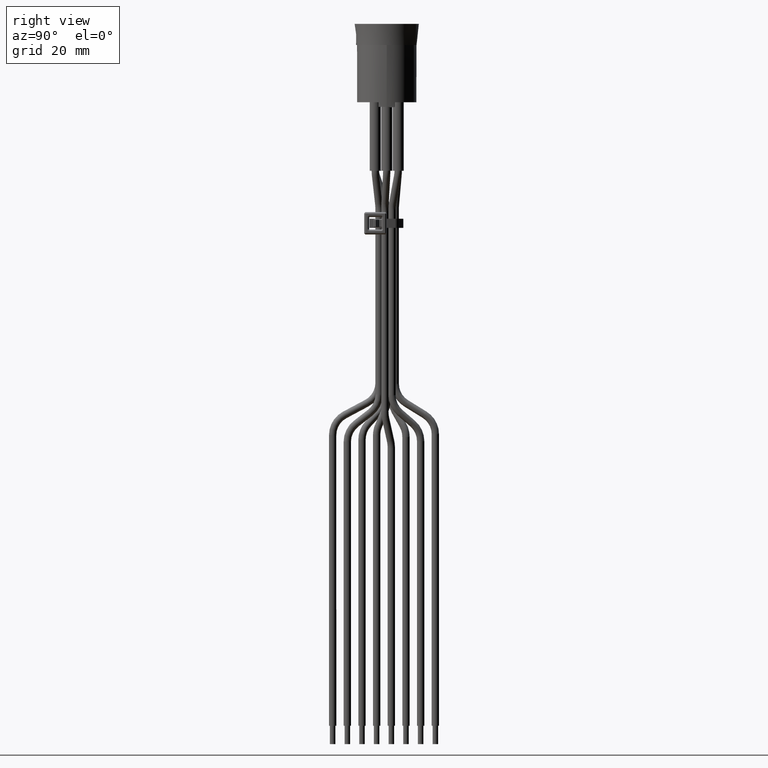
[diagram: clean part render]
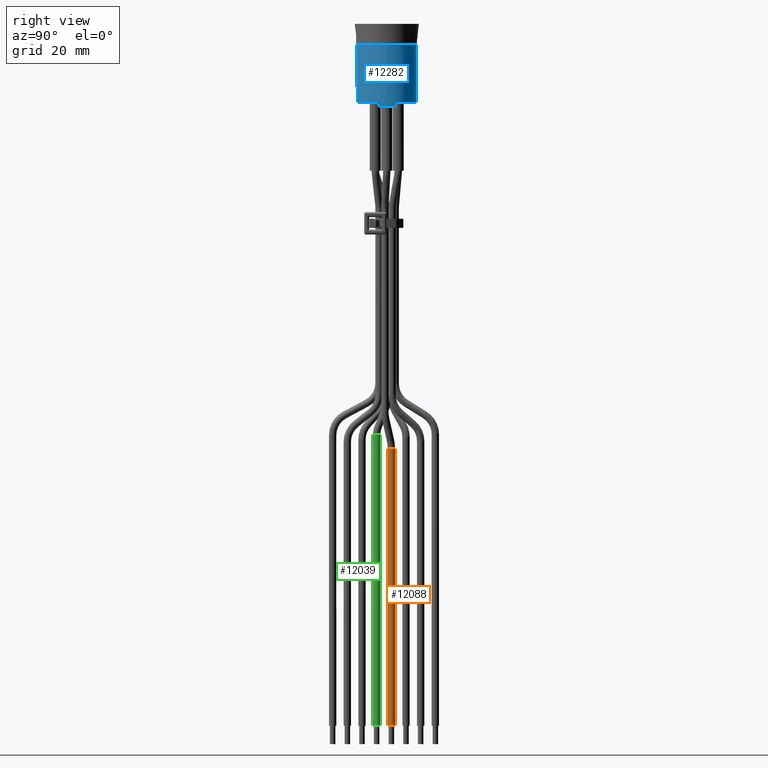
[diagram: same view with three faces highlighted in distinct colors, each labeled with its STEP entity id]
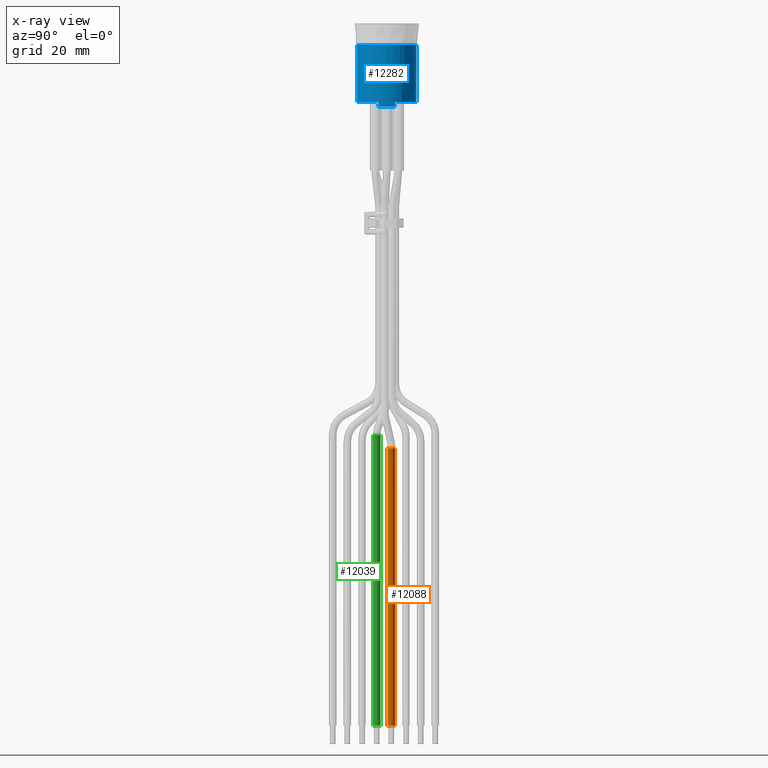
[diagram: x-ray of the same camera — body ghosted, the three highlighted faces saturated]
A machine part, right view with three faces highlighted in distinct colors.
The next image is the same camera in x-ray (body ghosted, the three faces saturated) — at least one of them is partly hidden behind the body in this view.
Their STEP definitions:

[orange] entity #12088 — the highlighted cylindrical surface (bore or boss wall) has radius 0.8 mm, axis along (-0, 0, -1).
#990=FACE_OUTER_BOUND('',#1674,.T.);
#1674=EDGE_LOOP('',(#8793,#8794,#8795,#8796,#8797));
#2397=CIRCLE('',#12904,0.8);
#2412=CIRCLE('',#12925,0.8);
#2413=CIRCLE('',#12926,0.8);
#2993=LINE('',#18616,#4143);
#4143=VECTOR('',#14583,0.8);
#5350=VERTEX_POINT('',#18576);
#5361=VERTEX_POINT('',#18610);
#5362=VERTEX_POINT('',#18611);
#6657=EDGE_CURVE('',#5350,#5350,#2397,.T.);
#6674=EDGE_CURVE('',#5361,#5362,#2412,.T.);
#6675=EDGE_CURVE('',#5362,#5361,#2413,.T.);
#6677=EDGE_CURVE('',#5350,#5361,#2993,.T.);
#8793=ORIENTED_EDGE('',*,*,#6657,.F.);
#8794=ORIENTED_EDGE('',*,*,#6677,.T.);
#8795=ORIENTED_EDGE('',*,*,#6674,.T.);
#8796=ORIENTED_EDGE('',*,*,#6675,.T.);
#8797=ORIENTED_EDGE('',*,*,#6677,.F.);
#11863=CYLINDRICAL_SURFACE('',#12928,0.8);
#12088=ADVANCED_FACE('',(#990),#11863,.T.);
#12904=AXIS2_PLACEMENT_3D('',#18577,#14531,#14532);
#12925=AXIS2_PLACEMENT_3D('',#18612,#14575,#14576);
#12926=AXIS2_PLACEMENT_3D('',#18613,#14577,#14578);
#12928=AXIS2_PLACEMENT_3D('',#18615,#14581,#14582);
#14531=DIRECTION('center_axis',(-1.91513471747839E-15,5.30176234430779E-15,
-1.));
#14532=DIRECTION('ref_axis',(-4.93166788936738E-15,1.,5.36507975118095E-15));
#14575=DIRECTION('center_axis',(-1.91513471747839E-15,5.30176234430779E-15,
-1.));
#14576=DIRECTION('ref_axis',(-4.93166788936738E-15,1.,5.36507975118095E-15));
#14577=DIRECTION('center_axis',(-1.91513471747839E-15,5.30176234430779E-15,
-1.));
#14578=DIRECTION('ref_axis',(-4.93166788936738E-15,1.,5.36507975118095E-15));
#14581=DIRECTION('center_axis',(-1.74860126378461E-15,4.9102626461505E-15,
-1.));
#14582=DIRECTION('ref_axis',(-4.93166788936739E-15,1.,4.9102626461505E-15));
#14583=DIRECTION('',(1.74860126378461E-15,-4.9102626461505E-15,1.));
#18576=CARTESIAN_POINT('',(-0.0214932559556519,0.200000000000643,-128.1));
#18577=CARTESIAN_POINT('Origin',(-0.0214932559556518,1.00000000000064,-128.1));
#18610=CARTESIAN_POINT('',(-0.0214932559555461,0.200000000000342,-67.5757188810226));
#18611=CARTESIAN_POINT('',(0.61184146450397,0.511239187474966,-67.5757188810226));
#18612=CARTESIAN_POINT('Origin',(-0.0214932559555459,1.00000000000034,-67.5757188810226));
#18613=CARTESIAN_POINT('Origin',(-0.0214932559555459,1.00000000000034,-67.5757188810226));
#18615=CARTESIAN_POINT('Origin',(-0.0214932559555459,1.00000000000034,-67.5757188810226));
#18616=CARTESIAN_POINT('',(-0.0214932559555421,0.200000000000342,-67.5757188810226));

[blue] entity #12282 — the highlighted cylindrical surface (bore or boss wall) has radius 6.5 mm, axis along (-0, -0, 1).
#1184=FACE_OUTER_BOUND('',#1886,.T.);
#1886=EDGE_LOOP('',(#9869,#9870,#9871,#9872,#9873,#9874,#9875,#9876,#9877,
#9878,#9879,#9880,#9881));
#2673=CIRCLE('',#13376,6.5);
#2674=CIRCLE('',#13377,6.5);
#2680=CIRCLE('',#13392,6.5);
#2681=CIRCLE('',#13393,6.5);
#2682=CIRCLE('',#13394,6.5);
#2683=CIRCLE('',#13395,6.5);
#2684=CIRCLE('',#13396,6.5);
#3217=LINE('',#21164,#4367);
#3223=LINE('',#21176,#4373);
#3229=LINE('',#21189,#4379);
#3235=LINE('',#21201,#4385);
#3240=LINE('',#21211,#4390);
#4367=VECTOR('',#15721,10.);
#4373=VECTOR('',#15729,10.);
#4379=VECTOR('',#15739,10.);
#4385=VECTOR('',#15747,10.);
#4390=VECTOR('',#15756,6.5);
#5697=VERTEX_POINT('',#21109);
#5698=VERTEX_POINT('',#21111);
#5713=VERTEX_POINT('',#21160);
#5715=VERTEX_POINT('',#21163);
#5718=VERTEX_POINT('',#21170);
#5720=VERTEX_POINT('',#21174);
#5723=VERTEX_POINT('',#21185);
#5725=VERTEX_POINT('',#21188);
#5728=VERTEX_POINT('',#21195);
#5730=VERTEX_POINT('',#21199);
#5733=VERTEX_POINT('',#21210);
#7203=EDGE_CURVE('',#5697,#5698,#2673,.T.);
#7204=EDGE_CURVE('',#5698,#5697,#2674,.T.);
#7221=EDGE_CURVE('',#5713,#5715,#3217,.T.);
#7227=EDGE_CURVE('',#5718,#5720,#3223,.T.);
#7233=EDGE_CURVE('',#5723,#5725,#3229,.T.);
#7239=EDGE_CURVE('',#5728,#5730,#3235,.T.);
#7244=EDGE_CURVE('',#5698,#5733,#3240,.T.);
#7245=EDGE_CURVE('',#5725,#5733,#2680,.T.);
#7246=EDGE_CURVE('',#5718,#5723,#2681,.T.);
#7247=EDGE_CURVE('',#5715,#5720,#2682,.T.);
#7248=EDGE_CURVE('',#5728,#5713,#2683,.T.);
#7249=EDGE_CURVE('',#5733,#5730,#2684,.T.);
#9869=ORIENTED_EDGE('',*,*,#7203,.F.);
#9870=ORIENTED_EDGE('',*,*,#7204,.F.);
#9871=ORIENTED_EDGE('',*,*,#7244,.T.);
#9872=ORIENTED_EDGE('',*,*,#7245,.F.);
#9873=ORIENTED_EDGE('',*,*,#7233,.F.);
#9874=ORIENTED_EDGE('',*,*,#7246,.F.);
#9875=ORIENTED_EDGE('',*,*,#7227,.T.);
#9876=ORIENTED_EDGE('',*,*,#7247,.F.);
#9877=ORIENTED_EDGE('',*,*,#7221,.F.);
#9878=ORIENTED_EDGE('',*,*,#7248,.F.);
#9879=ORIENTED_EDGE('',*,*,#7239,.T.);
#9880=ORIENTED_EDGE('',*,*,#7249,.F.);
#9881=ORIENTED_EDGE('',*,*,#7244,.F.);
#11926=CYLINDRICAL_SURFACE('',#13391,6.5);
#12282=ADVANCED_FACE('',(#1184),#11926,.T.);
#13376=AXIS2_PLACEMENT_3D('',#21112,#15695,#15696);
#13377=AXIS2_PLACEMENT_3D('',#21113,#15697,#15698);
#13391=AXIS2_PLACEMENT_3D('',#21209,#15754,#15755);
#13392=AXIS2_PLACEMENT_3D('',#21212,#15757,#15758);
#13393=AXIS2_PLACEMENT_3D('',#21213,#15759,#15760);
#13394=AXIS2_PLACEMENT_3D('',#21214,#15761,#15762);
#13395=AXIS2_PLACEMENT_3D('',#21215,#15763,#15764);
#13396=AXIS2_PLACEMENT_3D('',#21216,#15765,#15766);
#15695=DIRECTION('center_axis',(-1.33148491864264E-14,-1.02644414540674E-28,
1.));
#15696=DIRECTION('ref_axis',(-1.,-7.83572744318549E-15,-1.33148491864264E-14));
#15697=DIRECTION('center_axis',(-1.33148491864264E-14,-1.02644414540674E-28,
1.));
#15698=DIRECTION('ref_axis',(-1.,-7.83572744318549E-15,-1.33148491864264E-14));
#15721=DIRECTION('',(1.33148491864264E-14,1.02644414540674E-28,-1.));
#15729=DIRECTION('',(1.33148491864264E-14,1.02644414540674E-28,-1.));
#15739=DIRECTION('',(1.33148491864264E-14,1.02644414540674E-28,-1.));
#15747=DIRECTION('',(1.33148491864264E-14,1.02644414540674E-28,-1.));
#15754=DIRECTION('center_axis',(-1.33148491864264E-14,-1.02644414540674E-28,
1.));
#15755=DIRECTION('ref_axis',(-1.,-7.83572744318549E-15,-1.33148491864264E-14));
#15756=DIRECTION('',(1.33148491864264E-14,1.02644414540674E-28,-1.));
#15757=DIRECTION('center_axis',(1.33148491864264E-14,1.02644414540674E-28,
-1.));
#15758=DIRECTION('ref_axis',(-0.960892090438598,0.276923076923069,-1.27941332686199E-14));
#15759=DIRECTION('center_axis',(1.33148491864264E-14,1.02644414540674E-28,
-1.));
#15760=DIRECTION('ref_axis',(-1.,-7.83572744318549E-15,-1.33148491864264E-14));
#15761=DIRECTION('center_axis',(1.33148491864264E-14,1.02644414540674E-28,
-1.));
#15762=DIRECTION('ref_axis',(-0.960892090438598,0.27692307692307,-1.27941332686199E-14));
#15763=DIRECTION('center_axis',(1.33148491864264E-14,1.02644414540674E-28,
-1.));
#15764=DIRECTION('ref_axis',(-1.,-7.83572744318549E-15,-1.33148491864264E-14));
#15765=DIRECTION('center_axis',(1.33148491864264E-14,1.02644414540674E-28,
-1.));
#15766=DIRECTION('ref_axis',(-0.960892090438598,0.276923076923069,-1.27941332686199E-14));
#21109=CARTESIAN_POINT('',(-2.17367843211036E-13,6.5,20.3999999999999));
#21111=CARTESIAN_POINT('',(6.49999999999983,5.17282488001502E-14,20.4));
#21112=CARTESIAN_POINT('Origin',(-1.6643561483033E-13,-1.28305518175842E-27,
20.3999999999999));
#21113=CARTESIAN_POINT('Origin',(-1.6643561483033E-13,-1.28305518175842E-27,
20.3999999999999));
#21160=CARTESIAN_POINT('',(-6.24579858785086,-1.80000000000005,7.89999999999983));
#21163=CARTESIAN_POINT('',(-6.24579858785085,-1.80000000000005,6.89999999999983));
#21164=CARTESIAN_POINT('',(-6.24579858785086,-1.80000000000005,7.89999999999983));
#21170=CARTESIAN_POINT('',(-6.24579858785089,1.79999999999995,7.89999999999983));
#21174=CARTESIAN_POINT('',(-6.24579858785088,1.79999999999995,6.89999999999983));
#21176=CARTESIAN_POINT('',(-6.24579858785089,1.79999999999995,7.89999999999983));
#21185=CARTESIAN_POINT('',(6.24579858785086,1.80000000000005,7.89999999999999));
#21188=CARTESIAN_POINT('',(6.24579858785087,1.80000000000005,6.89999999999999));
#21189=CARTESIAN_POINT('',(6.24579858785086,1.80000000000005,7.89999999999999));
#21195=CARTESIAN_POINT('',(6.24579858785089,-1.79999999999995,7.89999999999999));
#21199=CARTESIAN_POINT('',(6.24579858785091,-1.79999999999995,6.89999999999999));
#21201=CARTESIAN_POINT('',(6.24579858785089,-1.79999999999995,7.89999999999999));
#21209=CARTESIAN_POINT('Origin',(-2.95649042723642E-29,-2.31419630905262E-43,
7.89999999999991));
#21210=CARTESIAN_POINT('',(6.50000000000001,5.17282488001516E-14,6.9));
#21211=CARTESIAN_POINT('',(6.5,5.17282488001515E-14,7.9));
#21212=CARTESIAN_POINT('Origin',(1.33148491864264E-14,1.02644414540673E-28,
6.89999999999991));
#21213=CARTESIAN_POINT('Origin',(-2.95649042723642E-29,-2.31419630905262E-43,
7.89999999999991));
#21214=CARTESIAN_POINT('Origin',(1.33148491864264E-14,1.02644414540673E-28,
6.89999999999991));
#21215=CARTESIAN_POINT('Origin',(-2.95649042723642E-29,-2.31419630905262E-43,
7.89999999999991));
#21216=CARTESIAN_POINT('Origin',(1.33148491864264E-14,1.02644414540673E-28,
6.89999999999991));

[green] entity #12039 — the highlighted cylindrical surface (bore or boss wall) has radius 0.8 mm, axis along (-0, 0, -1).
#941=FACE_OUTER_BOUND('',#1614,.T.);
#1614=EDGE_LOOP('',(#8529,#8530,#8531,#8532,#8533));
#2298=CIRCLE('',#12755,0.8);
#2313=CIRCLE('',#12777,0.8);
#2314=CIRCLE('',#12778,0.8);
#2965=LINE('',#18005,#4115);
#4115=VECTOR('',#14259,0.8);
#5251=VERTEX_POINT('',#17820);
#5265=VERTEX_POINT('',#17999);
#5266=VERTEX_POINT('',#18000);
#6517=EDGE_CURVE('',#5251,#5251,#2298,.T.);
#6537=EDGE_CURVE('',#5265,#5266,#2313,.T.);
#6538=EDGE_CURVE('',#5266,#5265,#2314,.T.);
#6540=EDGE_CURVE('',#5251,#5265,#2965,.T.);
#8529=ORIENTED_EDGE('',*,*,#6517,.F.);
#8530=ORIENTED_EDGE('',*,*,#6540,.T.);
#8531=ORIENTED_EDGE('',*,*,#6537,.T.);
#8532=ORIENTED_EDGE('',*,*,#6538,.T.);
#8533=ORIENTED_EDGE('',*,*,#6540,.F.);
#11841=CYLINDRICAL_SURFACE('',#12780,0.8);
#12039=ADVANCED_FACE('',(#941),#11841,.T.);
#12755=AXIS2_PLACEMENT_3D('',#17821,#14204,#14205);
#12777=AXIS2_PLACEMENT_3D('',#18001,#14251,#14252);
#12778=AXIS2_PLACEMENT_3D('',#18002,#14253,#14254);
#12780=AXIS2_PLACEMENT_3D('',#18004,#14257,#14258);
#14204=DIRECTION('center_axis',(-1.91773680269235E-15,4.71889525637958E-15,
-1.));
#14205=DIRECTION('ref_axis',(-4.99807527243212E-15,1.,4.8229786649382E-15));
#14251=DIRECTION('center_axis',(-1.91773680269235E-15,4.71889525637958E-15,
-1.));
#14252=DIRECTION('ref_axis',(-4.99807527243212E-15,1.,4.8229786649382E-15));
#14253=DIRECTION('center_axis',(-1.91773680269235E-15,4.71889525637958E-15,
-1.));
#14254=DIRECTION('ref_axis',(-4.99807527243212E-15,1.,4.8229786649382E-15));
#14257=DIRECTION('center_axis',(-1.91513471747838E-15,4.8299175588421E-15,
-1.));
#14258=DIRECTION('ref_axis',(-4.99807527243212E-15,1.,4.82991755884211E-15));
#14259=DIRECTION('',(1.91513471747838E-15,-4.8299175588421E-15,1.));
#17820=CARTESIAN_POINT('',(-0.0214932559556396,-2.99999999999938,-128.1));
#17821=CARTESIAN_POINT('Origin',(-0.0214932559556437,-2.19999999999938,
-128.1));
#17999=CARTESIAN_POINT('',(-0.0214932559555181,-2.99999999999969,-64.6794794105911));
#18000=CARTESIAN_POINT('',(-0.013677899481693,-1.40003817578356,-64.6794794105911));
#18001=CARTESIAN_POINT('Origin',(-0.0214932559555222,-2.19999999999969,
-64.6794794105911));
#18002=CARTESIAN_POINT('Origin',(-0.0214932559555222,-2.19999999999969,
-64.6794794105911));
#18004=CARTESIAN_POINT('Origin',(-0.0214932559555222,-2.19999999999969,
-64.6794794105911));
#18005=CARTESIAN_POINT('',(-0.0214932559555183,-2.99999999999969,-64.6794794105911));